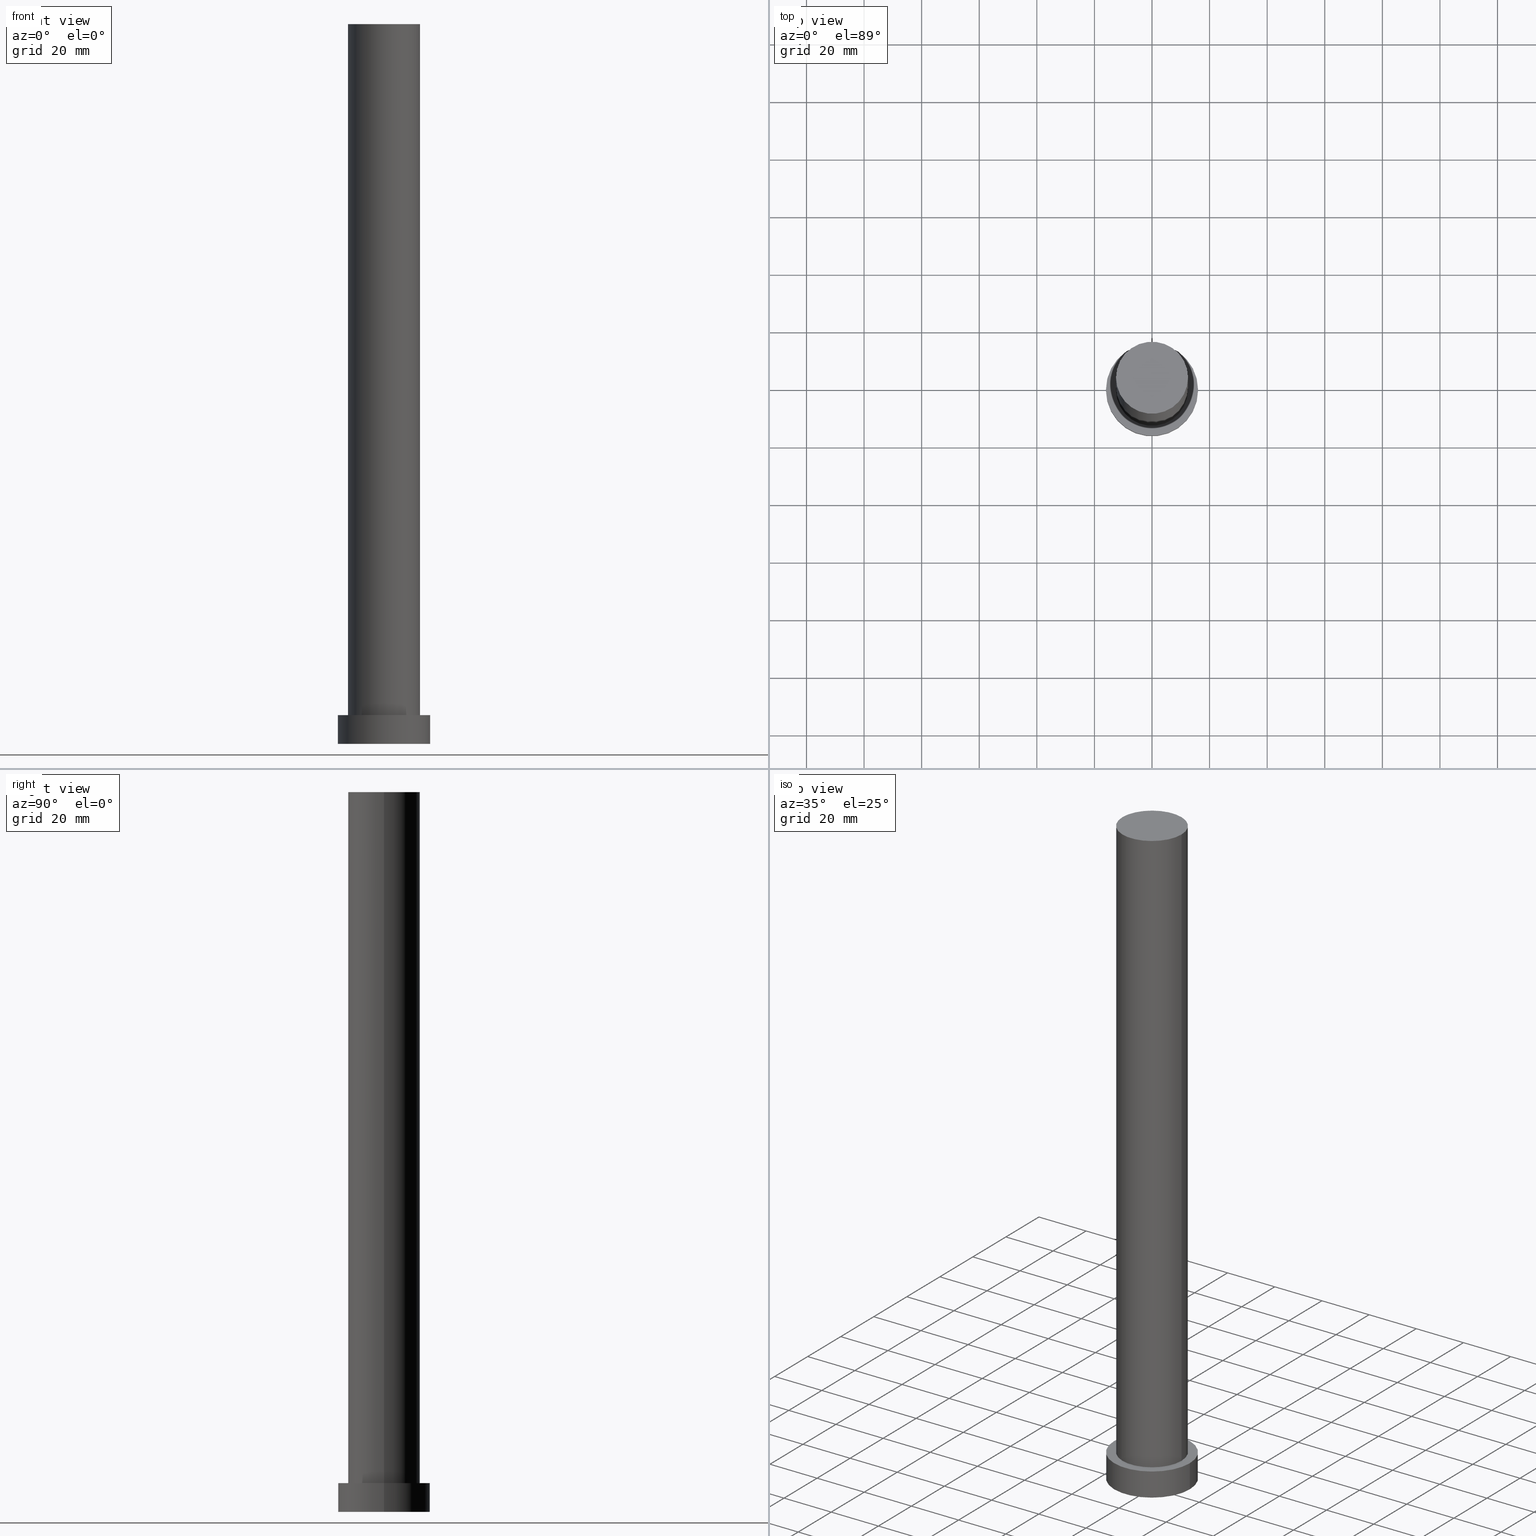
[diagram: canonical four-view strip — front | top / right | iso, engineering-drawing reading convention]
A machine part, canonical four-view strip (front | top / right | iso — engineering-drawing reading convention). The complete STEP part file that produces these views, byte-faithful:
ISO-10303-21;
HEADER;
FILE_DESCRIPTION (( 'STEP AP203' ),
    '1' );
FILE_NAME ('68d8.STEP',
    '2023-02-12T10:29:10',
    ( '' ),
    ( '' ),
    'SwSTEP 2.0',
    'SolidWorks 2019',
    '' );
FILE_SCHEMA (( 'CONFIG_CONTROL_DESIGN' ));
ENDSEC;

DATA;
#1 = CIRCLE ( 'NONE', #127, 16.00000000000000000 ) ;
#2 = FACE_OUTER_BOUND ( 'NONE', #192, .T. ) ;
#3 = AXIS2_PLACEMENT_3D ( 'NONE', #100, #175, #154 ) ;
#4 = ORIENTED_EDGE ( 'NONE', *, *, #124, .F. ) ;
#5 = EDGE_CURVE ( 'NONE', #253, #217, #35, .T. ) ;
#6 = DIRECTION ( 'NONE',  ( 1.000000000000000000, 0.000000000000000000, 0.000000000000000000 ) ) ;
#7 = DIRECTION ( 'NONE',  ( -1.000000000000000000, 0.000000000000000000, 0.000000000000000000 ) ) ;
#8 = CARTESIAN_POINT ( 'NONE',  ( 0.000000000000000000, 0.000000000000000000, 0.000000000000000000 ) ) ;
#9 = CYLINDRICAL_SURFACE ( 'NONE', #199, 16.00000000000000000 ) ;
#10 = CC_DESIGN_DATE_AND_TIME_ASSIGNMENT ( #94, #247, ( #140 ) ) ;
#11 = CALENDAR_DATE ( 2023, 12, 2 ) ;
#12 = ORIENTED_EDGE ( 'NONE', *, *, #110, .T. ) ;
#13 = LINE ( 'NONE', #39, #109 ) ;
#14 = APPROVAL_PERSON_ORGANIZATION ( #211, #204, #187 ) ;
#15 = ORIENTED_EDGE ( 'NONE', *, *, #231, .F. ) ;
#16 = VERTEX_POINT ( 'NONE', #132 ) ;
#17 = DIRECTION ( 'NONE',  ( -0.000000000000000000, -0.000000000000000000, -1.000000000000000000 ) ) ;
#18 = DIRECTION ( 'NONE',  ( 0.000000000000000000, 0.000000000000000000, 1.000000000000000000 ) ) ;
#19 = PLANE ( 'NONE',  #237 ) ;
#20 = LOCAL_TIME ( 11, 29, 10.00000000000000000, #233 ) ;
#21 = EDGE_LOOP ( 'NONE', ( #117, #167 ) ) ;
#22 = APPLICATION_CONTEXT ( 'configuration controlled 3d designs of mechanical parts and assemblies' ) ;
#23 = CARTESIAN_POINT ( 'NONE',  ( -12.50000000000000000, 0.000000000000000000, 10.00000000000000000 ) ) ;
#24 = PRODUCT_DEFINITION_SHAPE ( 'NONE', 'NONE',  #90 ) ;
#25 = CIRCLE ( 'NONE', #108, 12.50000000000000000 ) ;
#26 = PLANE ( 'NONE',  #52 ) ;
#27 = DATE_AND_TIME ( #208, #168 ) ;
#28 = APPROVAL_PERSON_ORGANIZATION ( #68, #151, #164 ) ;
#29 = CC_DESIGN_PERSON_AND_ORGANIZATION_ASSIGNMENT ( #134, #180, ( #90 ) ) ;
#30 = APPROVAL_STATUS ( 'not_yet_approved' ) ;
#31 =( GEOMETRIC_REPRESENTATION_CONTEXT ( 3 ) GLOBAL_UNCERTAINTY_ASSIGNED_CONTEXT ( ( #114 ) ) GLOBAL_UNIT_ASSIGNED_CONTEXT ( ( #245, #85, #161 ) ) REPRESENTATION_CONTEXT ( 'NONE', 'WORKASPACE' ) );
#32 = CARTESIAN_POINT ( 'NONE',  ( -16.00000000000000000, 0.000000000000000000, 10.00000000000000000 ) ) ;
#33 = COORDINATED_UNIVERSAL_TIME_OFFSET ( 1, 0, .AHEAD. ) ;
#34 = ORIENTED_EDGE ( 'NONE', *, *, #5, .F. ) ;
#35 = CIRCLE ( 'NONE', #246, 16.00000000000000000 ) ;
#36 = CC_DESIGN_APPROVAL ( #204, ( #140 ) ) ;
#37 = ORIENTED_EDGE ( 'NONE', *, *, #106, .F. ) ;
#38 = DIRECTION ( 'NONE',  ( 0.000000000000000000, 0.000000000000000000, 1.000000000000000000 ) ) ;
#39 = CARTESIAN_POINT ( 'NONE',  ( -16.00000000000000000, 0.000000000000000000, 10.00000000000000000 ) ) ;
#40 = ORIENTED_EDGE ( 'NONE', *, *, #110, .F. ) ;
#41 = CIRCLE ( 'NONE', #3, 12.50000000000000000 ) ;
#42 = CIRCLE ( 'NONE', #215, 12.50000000000000000 ) ;
#43 = DIRECTION ( 'NONE',  ( 0.000000000000000000, 0.000000000000000000, 1.000000000000000000 ) ) ;
#44 = APPROVAL_STATUS ( 'not_yet_approved' ) ;
#45 = PERSON_AND_ORGANIZATION_ROLE ( 'creator' ) ;
#46 = CC_DESIGN_SECURITY_CLASSIFICATION ( #140, ( #160 ) ) ;
#47 = SHAPE_DEFINITION_REPRESENTATION ( #24, #76 ) ;
#48 = APPLICATION_PROTOCOL_DEFINITION ( 'international standard', 'config_control_design', 1994, #22 ) ;
#49 = CC_DESIGN_PERSON_AND_ORGANIZATION_ASSIGNMENT ( #125, #91, ( #160 ) ) ;
#50 = ORIENTED_EDGE ( 'NONE', *, *, #244, .T. ) ;
#51 = DIRECTION ( 'NONE',  ( 1.000000000000000000, 0.000000000000000000, -0.000000000000000000 ) ) ;
#52 = AXIS2_PLACEMENT_3D ( 'NONE', #105, #122, #207 ) ;
#53 = FACE_OUTER_BOUND ( 'NONE', #78, .T. ) ;
#54 = VERTEX_POINT ( 'NONE', #32 ) ;
#55 = ADVANCED_FACE ( 'NONE', ( #113, #189 ), #251, .T. ) ;
#56 = CARTESIAN_POINT ( 'NONE',  ( 16.00000000000000000, 1.959434878635765131E-15, 10.00000000000000000 ) ) ;
#57 = DIRECTION ( 'NONE',  ( -1.000000000000000000, 0.000000000000000000, 0.000000000000000000 ) ) ;
#58 = ORIENTED_EDGE ( 'NONE', *, *, #5, .T. ) ;
#59 = CARTESIAN_POINT ( 'NONE',  ( 0.000000000000000000, 0.000000000000000000, 0.000000000000000000 ) ) ;
#60 = LOCAL_TIME ( 11, 29, 10.00000000000000000, #33 ) ;
#61 = CARTESIAN_POINT ( 'NONE',  ( 0.000000000000000000, 0.000000000000000000, 10.00000000000000000 ) ) ;
#62 = PRODUCT ( '68d8', '68d8', '', ( #107 ) ) ;
#63 = DIRECTION ( 'NONE',  ( 0.000000000000000000, 0.000000000000000000, 1.000000000000000000 ) ) ;
#64 = EDGE_CURVE ( 'NONE', #54, #16, #1, .T. ) ;
#65 = FACE_OUTER_BOUND ( 'NONE', #232, .T. ) ;
#66 = LOCAL_TIME ( 11, 29, 10.00000000000000000, #166 ) ;
#67 = PERSON ( 'NEUR�EN�', 'NEUR�EN�', 'NEUR�EN�', ('NEUR�EN�'), ('NEUR�EN�'), ('NEUR�EN�') ) ;
#68 = PERSON_AND_ORGANIZATION ( #67, #123 ) ;
#69 = AXIS2_PLACEMENT_3D ( 'NONE', #126, #235, #51 ) ;
#70 = COORDINATED_UNIVERSAL_TIME_OFFSET ( 1, 0, .AHEAD. ) ;
#71 = CC_DESIGN_APPROVAL ( #151, ( #90 ) ) ;
#72 = EDGE_CURVE ( 'NONE', #236, #240, #42, .T. ) ;
#73 = DIRECTION ( 'NONE',  ( 0.000000000000000000, 0.000000000000000000, 1.000000000000000000 ) ) ;
#74 = CARTESIAN_POINT ( 'NONE',  ( 0.000000000000000000, 0.000000000000000000, 0.000000000000000000 ) ) ;
#75 = CALENDAR_DATE ( 2023, 12, 2 ) ;
#76 = ADVANCED_BREP_SHAPE_REPRESENTATION ( '68d8', ( #128, #185 ), #31 ) ;
#77 = DIRECTION ( 'NONE',  ( 1.000000000000000000, 0.000000000000000000, -0.000000000000000000 ) ) ;
#78 = EDGE_LOOP ( 'NONE', ( #130, #197, #153, #116 ) ) ;
#79 = ADVANCED_FACE ( 'NONE', ( #119 ), #9, .T. ) ;
#80 = CIRCLE ( 'NONE', #212, 16.00000000000000000 ) ;
#81 = CARTESIAN_POINT ( 'NONE',  ( 12.50000000000000000, 1.530808498934191521E-15, 250.0000000000000000 ) ) ;
#82 = ORIENTED_EDGE ( 'NONE', *, *, #225, .T. ) ;
#83 = CARTESIAN_POINT ( 'NONE',  ( -16.00000000000000000, 0.000000000000000000, 0.000000000000000000 ) ) ;
#84 = CYLINDRICAL_SURFACE ( 'NONE', #162, 12.50000000000000000 ) ;
#85 =( NAMED_UNIT ( * ) PLANE_ANGLE_UNIT ( ) SI_UNIT ( $, .RADIAN. ) );
#86 = CC_DESIGN_DATE_AND_TIME_ASSIGNMENT ( #209, #138, ( #90 ) ) ;
#87 = AXIS2_PLACEMENT_3D ( 'NONE', #59, #133, #93 ) ;
#88 = DIRECTION ( 'NONE',  ( -0.000000000000000000, -0.000000000000000000, -1.000000000000000000 ) ) ;
#89 = CALENDAR_DATE ( 2023, 12, 2 ) ;
#90 = PRODUCT_DEFINITION ( 'NEZN�M�', '', #160, #143 ) ;
#91 = PERSON_AND_ORGANIZATION_ROLE ( 'design_supplier' ) ;
#92 = CC_DESIGN_APPROVAL ( #139, ( #160 ) ) ;
#93 = DIRECTION ( 'NONE',  ( 1.000000000000000000, 0.000000000000000000, 0.000000000000000000 ) ) ;
#94 = DATE_AND_TIME ( #115, #60 ) ;
#95 = ORIENTED_EDGE ( 'NONE', *, *, #72, .T. ) ;
#96 = CARTESIAN_POINT ( 'NONE',  ( 12.50000000000000000, 1.530808498934191521E-15, 250.0000000000000000 ) ) ;
#97 = ORIENTED_EDGE ( 'NONE', *, *, #106, .T. ) ;
#98 = LINE ( 'NONE', #56, #226 ) ;
#99 = EDGE_LOOP ( 'NONE', ( #4, #118, #97, #12 ) ) ;
#100 = CARTESIAN_POINT ( 'NONE',  ( 0.000000000000000000, 0.000000000000000000, 10.00000000000000000 ) ) ;
#101 = CARTESIAN_POINT ( 'NONE',  ( 0.000000000000000000, 0.000000000000000000, 10.00000000000000000 ) ) ;
#102 = ADVANCED_FACE ( 'NONE', ( #178 ), #84, .T. ) ;
#103 = DIRECTION ( 'NONE',  ( 0.000000000000000000, 0.000000000000000000, 1.000000000000000000 ) ) ;
#104 = CIRCLE ( 'NONE', #87, 16.00000000000000000 ) ;
#105 = CARTESIAN_POINT ( 'NONE',  ( 0.000000000000000000, 0.000000000000000000, 0.000000000000000000 ) ) ;
#106 = EDGE_CURVE ( 'NONE', #236, #200, #241, .T. ) ;
#107 = MECHANICAL_CONTEXT ( 'NONE', #224, 'mechanical' ) ;
#108 = AXIS2_PLACEMENT_3D ( 'NONE', #61, #63, #206 ) ;
#109 = VECTOR ( 'NONE', #198, 1000.000000000000000 ) ;
#110 = EDGE_CURVE ( 'NONE', #200, #176, #25, .T. ) ;
#111 = PERSON_AND_ORGANIZATION_ROLE ( 'classification_officer' ) ;
#112 = ADVANCED_FACE ( 'NONE', ( #65 ), #26, .F. ) ;
#113 = FACE_BOUND ( 'NONE', #238, .T. ) ;
#114 = UNCERTAINTY_MEASURE_WITH_UNIT (LENGTH_MEASURE( 1.000000000000000082E-05 ), #245, 'distance_accuracy_value', 'NONE');
#115 = CALENDAR_DATE ( 2023, 12, 2 ) ;
#116 = ORIENTED_EDGE ( 'NONE', *, *, #231, .T. ) ;
#117 = ORIENTED_EDGE ( 'NONE', *, *, #64, .T. ) ;
#118 = ORIENTED_EDGE ( 'NONE', *, *, #72, .F. ) ;
#119 = FACE_OUTER_BOUND ( 'NONE', #194, .T. ) ;
#120 = DIRECTION ( 'NONE',  ( 1.000000000000000000, 0.000000000000000000, 0.000000000000000000 ) ) ;
#121 = PRODUCT_RELATED_PRODUCT_CATEGORY ( 'detail', '', ( #62 ) ) ;
#122 = DIRECTION ( 'NONE',  ( 0.000000000000000000, 0.000000000000000000, 1.000000000000000000 ) ) ;
#123 = ORGANIZATION ( 'NEUR�EN�', 'NEUR�EN�', '' ) ;
#124 = EDGE_CURVE ( 'NONE', #240, #176, #239, .T. ) ;
#125 = PERSON_AND_ORGANIZATION ( #67, #123 ) ;
#126 = CARTESIAN_POINT ( 'NONE',  ( 0.000000000000000000, 0.000000000000000000, 10.00000000000000000 ) ) ;
#127 = AXIS2_PLACEMENT_3D ( 'NONE', #181, #43, #202 ) ;
#128 = MANIFOLD_SOLID_BREP ( 'P�idat vysunut�m3', #148 ) ;
#129 = CARTESIAN_POINT ( 'NONE',  ( 0.000000000000000000, 0.000000000000000000, 10.00000000000000000 ) ) ;
#130 = ORIENTED_EDGE ( 'NONE', *, *, #225, .F. ) ;
#131 = CARTESIAN_POINT ( 'NONE',  ( 0.000000000000000000, 0.000000000000000000, 250.0000000000000000 ) ) ;
#132 = CARTESIAN_POINT ( 'NONE',  ( 16.00000000000000000, 1.959434878635765131E-15, 10.00000000000000000 ) ) ;
#133 = DIRECTION ( 'NONE',  ( 0.000000000000000000, 0.000000000000000000, 1.000000000000000000 ) ) ;
#134 = PERSON_AND_ORGANIZATION ( #67, #123 ) ;
#135 = CARTESIAN_POINT ( 'NONE',  ( -12.50000000000000000, 0.000000000000000000, 250.0000000000000000 ) ) ;
#136 = EDGE_CURVE ( 'NONE', #16, #54, #80, .T. ) ;
#137 = PERSON_AND_ORGANIZATION ( #67, #123 ) ;
#138 = DATE_TIME_ROLE ( 'creation_date' ) ;
#139 = APPROVAL ( #44, 'NEUR�EN�' ) ;
#140 = SECURITY_CLASSIFICATION ( '', '', #250 ) ;
#141 = PERSON_AND_ORGANIZATION_ROLE ( 'design_owner' ) ;
#142 = ADVANCED_FACE ( 'NONE', ( #216 ), #152, .T. ) ;
#143 = DESIGN_CONTEXT ( 'detailed design', #22, 'design' ) ;
#144 = ORIENTED_EDGE ( 'NONE', *, *, #244, .F. ) ;
#145 = DIRECTION ( 'NONE',  ( 1.000000000000000000, 0.000000000000000000, 0.000000000000000000 ) ) ;
#146 = ORIENTED_EDGE ( 'NONE', *, *, #124, .T. ) ;
#147 = CARTESIAN_POINT ( 'NONE',  ( 12.50000000000000000, 1.530808498934191521E-15, 10.00000000000000000 ) ) ;
#148 = CLOSED_SHELL ( 'NONE', ( #102, #79, #190, #55, #112, #142, #163 ) ) ;
#149 = EDGE_LOOP ( 'NONE', ( #144, #146, #255, #37 ) ) ;
#150 = DIRECTION ( 'NONE',  ( -1.000000000000000000, 0.000000000000000000, 0.000000000000000000 ) ) ;
#151 = APPROVAL ( #249, 'NEUR�EN�' ) ;
#152 = CYLINDRICAL_SURFACE ( 'NONE', #218, 12.50000000000000000 ) ;
#153 = ORIENTED_EDGE ( 'NONE', *, *, #169, .T. ) ;
#154 = DIRECTION ( 'NONE',  ( 1.000000000000000000, 0.000000000000000000, 0.000000000000000000 ) ) ;
#155 = CARTESIAN_POINT ( 'NONE',  ( 0.000000000000000000, 0.000000000000000000, 250.0000000000000000 ) ) ;
#156 = LOCAL_TIME ( 11, 29, 10.00000000000000000, #70 ) ;
#157 = DIRECTION ( 'NONE',  ( -1.000000000000000000, 0.000000000000000000, 0.000000000000000000 ) ) ;
#158 = APPLICATION_PROTOCOL_DEFINITION ( 'international standard', 'config_control_design', 1994, #224 ) ;
#159 = CARTESIAN_POINT ( 'NONE',  ( 0.000000000000000000, 0.000000000000000000, 250.0000000000000000 ) ) ;
#160 = PRODUCT_DEFINITION_FORMATION_WITH_SPECIFIED_SOURCE ( 'LIBOVOLN�', '', #62, .NOT_KNOWN. ) ;
#161 =( NAMED_UNIT ( * ) SI_UNIT ( $, .STERADIAN. ) SOLID_ANGLE_UNIT ( ) );
#162 = AXIS2_PLACEMENT_3D ( 'NONE', #155, #88, #157 ) ;
#163 = ADVANCED_FACE ( 'NONE', ( #2 ), #19, .T. ) ;
#164 = APPROVAL_ROLE ( '' ) ;
#165 = DATE_AND_TIME ( #89, #156 ) ;
#166 = COORDINATED_UNIVERSAL_TIME_OFFSET ( 1, 0, .AHEAD. ) ;
#167 = ORIENTED_EDGE ( 'NONE', *, *, #136, .T. ) ;
#168 = LOCAL_TIME ( 11, 29, 10.00000000000000000, #210 ) ;
#169 = EDGE_CURVE ( 'NONE', #54, #217, #13, .T. ) ;
#170 = CARTESIAN_POINT ( 'NONE',  ( -12.50000000000000000, 0.000000000000000000, 250.0000000000000000 ) ) ;
#171 = ORIENTED_EDGE ( 'NONE', *, *, #169, .F. ) ;
#172 = ORIENTED_EDGE ( 'NONE', *, *, #230, .F. ) ;
#173 = DIRECTION ( 'NONE',  ( -0.000000000000000000, -0.000000000000000000, -1.000000000000000000 ) ) ;
#174 = CC_DESIGN_PERSON_AND_ORGANIZATION_ASSIGNMENT ( #188, #141, ( #62 ) ) ;
#175 = DIRECTION ( 'NONE',  ( 0.000000000000000000, 0.000000000000000000, 1.000000000000000000 ) ) ;
#176 = VERTEX_POINT ( 'NONE', #147 ) ;
#177 = DIRECTION ( 'NONE',  ( -0.000000000000000000, -0.000000000000000000, -1.000000000000000000 ) ) ;
#178 = FACE_OUTER_BOUND ( 'NONE', #149, .T. ) ;
#179 = CIRCLE ( 'NONE', #242, 12.50000000000000000 ) ;
#180 = PERSON_AND_ORGANIZATION_ROLE ( 'creator' ) ;
#181 = CARTESIAN_POINT ( 'NONE',  ( 0.000000000000000000, 0.000000000000000000, 10.00000000000000000 ) ) ;
#182 = DIRECTION ( 'NONE',  ( 0.000000000000000000, 0.000000000000000000, 1.000000000000000000 ) ) ;
#183 = APPROVAL_DATE_TIME ( #27, #139 ) ;
#184 = VECTOR ( 'NONE', #243, 1000.000000000000000 ) ;
#185 = AXIS2_PLACEMENT_3D ( 'NONE', #8, #182, #120 ) ;
#186 = APPROVAL_ROLE ( '' ) ;
#187 = APPROVAL_ROLE ( '' ) ;
#188 = PERSON_AND_ORGANIZATION ( #67, #123 ) ;
#189 = FACE_OUTER_BOUND ( 'NONE', #21, .T. ) ;
#190 = ADVANCED_FACE ( 'NONE', ( #53 ), #201, .T. ) ;
#191 = DIRECTION ( 'NONE',  ( 0.000000000000000000, 0.000000000000000000, 1.000000000000000000 ) ) ;
#192 = EDGE_LOOP ( 'NONE', ( #95, #50 ) ) ;
#193 = AXIS2_PLACEMENT_3D ( 'NONE', #129, #219, #150 ) ;
#194 = EDGE_LOOP ( 'NONE', ( #221, #82, #58, #171 ) ) ;
#195 = DIRECTION ( 'NONE',  ( -0.000000000000000000, -0.000000000000000000, -1.000000000000000000 ) ) ;
#196 = CC_DESIGN_PERSON_AND_ORGANIZATION_ASSIGNMENT ( #214, #111, ( #140 ) ) ;
#197 = ORIENTED_EDGE ( 'NONE', *, *, #64, .F. ) ;
#198 = DIRECTION ( 'NONE',  ( -0.000000000000000000, -0.000000000000000000, -1.000000000000000000 ) ) ;
#199 = AXIS2_PLACEMENT_3D ( 'NONE', #101, #177, #7 ) ;
#200 = VERTEX_POINT ( 'NONE', #23 ) ;
#201 = CYLINDRICAL_SURFACE ( 'NONE', #193, 16.00000000000000000 ) ;
#202 = DIRECTION ( 'NONE',  ( 1.000000000000000000, 0.000000000000000000, 0.000000000000000000 ) ) ;
#203 = DATE_AND_TIME ( #11, #66 ) ;
#204 = APPROVAL ( #30, 'NEUR�EN�' ) ;
#205 = VECTOR ( 'NONE', #173, 1000.000000000000000 ) ;
#206 = DIRECTION ( 'NONE',  ( 1.000000000000000000, 0.000000000000000000, 0.000000000000000000 ) ) ;
#207 = DIRECTION ( 'NONE',  ( 1.000000000000000000, 0.000000000000000000, -0.000000000000000000 ) ) ;
#208 = CALENDAR_DATE ( 2023, 12, 2 ) ;
#209 = DATE_AND_TIME ( #75, #20 ) ;
#210 = COORDINATED_UNIVERSAL_TIME_OFFSET ( 1, 0, .AHEAD. ) ;
#211 = PERSON_AND_ORGANIZATION ( #67, #123 ) ;
#212 = AXIS2_PLACEMENT_3D ( 'NONE', #222, #38, #6 ) ;
#213 = APPROVAL_DATE_TIME ( #203, #151 ) ;
#214 = PERSON_AND_ORGANIZATION ( #67, #123 ) ;
#215 = AXIS2_PLACEMENT_3D ( 'NONE', #159, #103, #228 ) ;
#216 = FACE_OUTER_BOUND ( 'NONE', #99, .T. ) ;
#217 = VERTEX_POINT ( 'NONE', #83 ) ;
#218 = AXIS2_PLACEMENT_3D ( 'NONE', #254, #195, #57 ) ;
#219 = DIRECTION ( 'NONE',  ( -0.000000000000000000, -0.000000000000000000, -1.000000000000000000 ) ) ;
#220 = DIRECTION ( 'NONE',  ( 1.000000000000000000, 0.000000000000000000, 0.000000000000000000 ) ) ;
#221 = ORIENTED_EDGE ( 'NONE', *, *, #136, .F. ) ;
#222 = CARTESIAN_POINT ( 'NONE',  ( 0.000000000000000000, 0.000000000000000000, 10.00000000000000000 ) ) ;
#223 = APPROVAL_PERSON_ORGANIZATION ( #137, #139, #186 ) ;
#224 = APPLICATION_CONTEXT ( 'configuration controlled 3d designs of mechanical parts and assemblies' ) ;
#225 = EDGE_CURVE ( 'NONE', #16, #253, #98, .T. ) ;
#226 = VECTOR ( 'NONE', #17, 1000.000000000000000 ) ;
#227 = CC_DESIGN_PERSON_AND_ORGANIZATION_ASSIGNMENT ( #229, #45, ( #160 ) ) ;
#228 = DIRECTION ( 'NONE',  ( 1.000000000000000000, 0.000000000000000000, 0.000000000000000000 ) ) ;
#229 = PERSON_AND_ORGANIZATION ( #67, #123 ) ;
#230 = EDGE_CURVE ( 'NONE', #176, #200, #41, .T. ) ;
#231 = EDGE_CURVE ( 'NONE', #217, #253, #104, .T. ) ;
#232 = EDGE_LOOP ( 'NONE', ( #15, #34 ) ) ;
#233 = COORDINATED_UNIVERSAL_TIME_OFFSET ( 1, 0, .AHEAD. ) ;
#234 = CARTESIAN_POINT ( 'NONE',  ( 16.00000000000000000, 1.959434878635765131E-15, 0.000000000000000000 ) ) ;
#235 = DIRECTION ( 'NONE',  ( 0.000000000000000000, 0.000000000000000000, 1.000000000000000000 ) ) ;
#236 = VERTEX_POINT ( 'NONE', #170 ) ;
#237 = AXIS2_PLACEMENT_3D ( 'NONE', #131, #191, #77 ) ;
#238 = EDGE_LOOP ( 'NONE', ( #40, #172 ) ) ;
#239 = LINE ( 'NONE', #81, #205 ) ;
#240 = VERTEX_POINT ( 'NONE', #96 ) ;
#241 = LINE ( 'NONE', #135, #184 ) ;
#242 = AXIS2_PLACEMENT_3D ( 'NONE', #252, #73, #145 ) ;
#243 = DIRECTION ( 'NONE',  ( -0.000000000000000000, -0.000000000000000000, -1.000000000000000000 ) ) ;
#244 = EDGE_CURVE ( 'NONE', #240, #236, #179, .T. ) ;
#245 =( LENGTH_UNIT ( ) NAMED_UNIT ( * ) SI_UNIT ( .MILLI., .METRE. ) );
#246 = AXIS2_PLACEMENT_3D ( 'NONE', #74, #18, #220 ) ;
#247 = DATE_TIME_ROLE ( 'classification_date' ) ;
#248 = APPROVAL_DATE_TIME ( #165, #204 ) ;
#249 = APPROVAL_STATUS ( 'not_yet_approved' ) ;
#250 = SECURITY_CLASSIFICATION_LEVEL ( 'unclassified' ) ;
#251 = PLANE ( 'NONE',  #69 ) ;
#252 = CARTESIAN_POINT ( 'NONE',  ( 0.000000000000000000, 0.000000000000000000, 250.0000000000000000 ) ) ;
#253 = VERTEX_POINT ( 'NONE', #234 ) ;
#254 = CARTESIAN_POINT ( 'NONE',  ( 0.000000000000000000, 0.000000000000000000, 250.0000000000000000 ) ) ;
#255 = ORIENTED_EDGE ( 'NONE', *, *, #230, .T. ) ;
ENDSEC;
END-ISO-10303-21;
